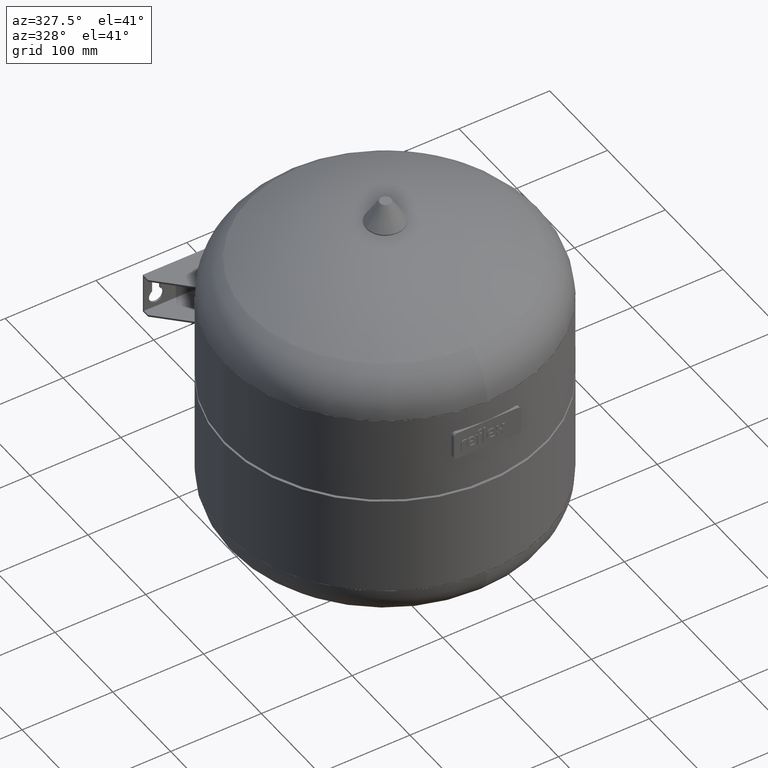
[diagram: clean part render]
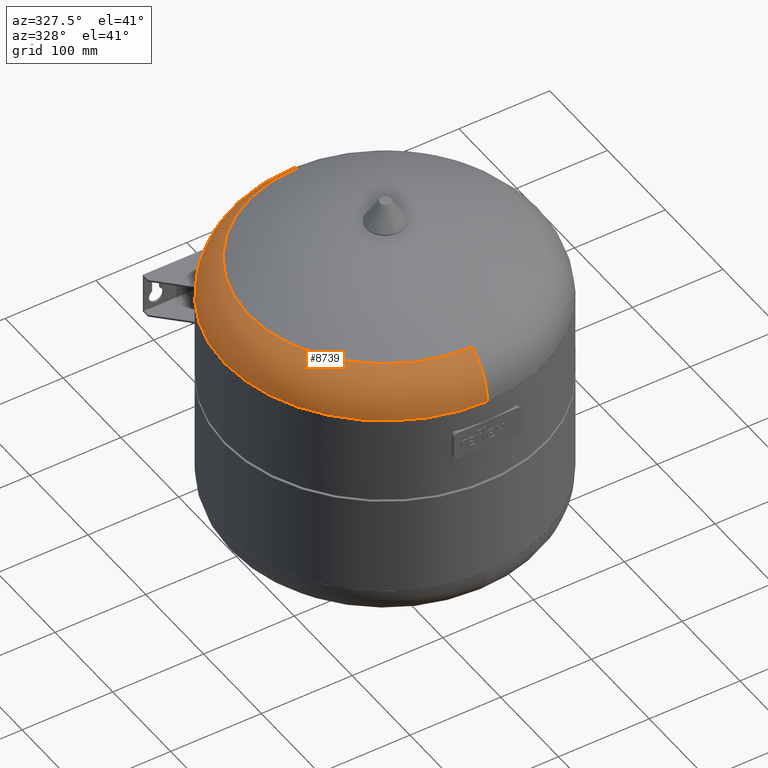
[diagram: same view with one face highlighted and labeled with its STEP entity id]
A machine part, auxiliary view. The second image highlights one B-rep face of the part: STEP entity #8739.
In plain terms, the highlighted toroidal blend (fillet) surface has major radius 121 mm and minor (blend) radius 56 mm.
Its self-contained STEP definition (entity closure, byte-faithful):
#8644=CARTESIAN_POINT('',(-177.0,-7.451053E-017,337.24336987332833));
#8645=VERTEX_POINT('',#8644);
#8669=CARTESIAN_POINT('',(-2.348140E-014,-177.0,337.24336987332828));
#8670=VERTEX_POINT('',#8669);
#8678=CARTESIAN_POINT('',(-4.829614E-018,-7.451053E-017,337.24336987332833));
#8679=DIRECTION('',(0.0,0.0,-1.0));
#8680=DIRECTION('',(-1.0,0.0,0.0));
#8681=AXIS2_PLACEMENT_3D('',#8678,#8679,#8680);
#8682=CIRCLE('',#8681,177.0);
#8683=EDGE_CURVE('',#8670,#8645,#8682,.T.);
#8688=CARTESIAN_POINT('',(-1.805872E-015,-7.451053E-017,337.24336987332833));
#8689=DIRECTION('',(1.984475E-017,3.061617E-016,-1.0));
#8690=DIRECTION('',(0.0,1.0,0.0));
#8691=AXIS2_PLACEMENT_3D('',#8688,#8689,#8690);
#8692=TOROIDAL_SURFACE('',#8691,121.00000000000003,56.000000000000007);
#8693=CARTESIAN_POINT('',(-1.805872E-015,177.0,337.24336987332839));
#8694=VERTEX_POINT('',#8693);
#8695=CARTESIAN_POINT('',(-2.747769E-015,150.71929824561403,384.70665370186521));
#8696=VERTEX_POINT('',#8695);
#8697=CARTESIAN_POINT('',(-1.805872E-015,121.00000000000003,337.24336987332839));
#8698=DIRECTION('',(1.0,0.0,0.0));
#8699=DIRECTION('',(0.0,1.0,0.0));
#8700=AXIS2_PLACEMENT_3D('',#8697,#8698,#8699);
#8701=CIRCLE('',#8700,56.000000000000007);
#8702=EDGE_CURVE('',#8694,#8696,#8701,.T.);
#8703=ORIENTED_EDGE('',*,*,#8702,.F.);
#8704=CARTESIAN_POINT('',(-4.829614E-018,-7.451053E-017,337.24336987332833));
#8705=DIRECTION('',(0.0,0.0,-1.0));
#8706=DIRECTION('',(-1.0,0.0,0.0));
#8707=AXIS2_PLACEMENT_3D('',#8704,#8705,#8706);
#8708=CIRCLE('',#8707,177.0);
#8709=EDGE_CURVE('',#8645,#8694,#8708,.T.);
#8710=ORIENTED_EDGE('',*,*,#8709,.F.);
#8711=ORIENTED_EDGE('',*,*,#8683,.F.);
#8712=CARTESIAN_POINT('',(-2.120495E-014,-150.71929824561408,384.70665370186509));
#8713=VERTEX_POINT('',#8712);
#8714=CARTESIAN_POINT('',(-1.662361E-014,-121.00000000000003,337.24336987332828));
#8715=DIRECTION('',(-1.0,0.0,0.0));
#8716=DIRECTION('',(0.0,-1.0,0.0));
#8717=AXIS2_PLACEMENT_3D('',#8714,#8715,#8716);
#8718=CIRCLE('',#8717,56.000000000000007);
#8719=EDGE_CURVE('',#8670,#8713,#8718,.T.);
#8720=ORIENTED_EDGE('',*,*,#8719,.T.);
#8721=CARTESIAN_POINT('',(-150.71929824561406,-1.460595E-014,384.70665370186515));
#8722=VERTEX_POINT('',#8721);
#8723=CARTESIAN_POINT('',(-9.467265E-016,-1.460595E-014,384.70665370186515));
#8724=DIRECTION('',(0.0,0.0,-1.0));
#8725=DIRECTION('',(-1.0,0.0,0.0));
#8726=AXIS2_PLACEMENT_3D('',#8723,#8724,#8725);
#8727=CIRCLE('',#8726,150.71929824561406);
#8728=EDGE_CURVE('',#8713,#8722,#8727,.T.);
#8729=ORIENTED_EDGE('',*,*,#8728,.T.);
#8730=CARTESIAN_POINT('',(-9.467265E-016,-1.460595E-014,384.70665370186515));
#8731=DIRECTION('',(0.0,0.0,-1.0));
#8732=DIRECTION('',(-1.0,0.0,0.0));
#8733=AXIS2_PLACEMENT_3D('',#8730,#8731,#8732);
#8734=CIRCLE('',#8733,150.71929824561406);
#8735=EDGE_CURVE('',#8722,#8696,#8734,.T.);
#8736=ORIENTED_EDGE('',*,*,#8735,.T.);
#8737=EDGE_LOOP('',(#8703,#8710,#8711,#8720,#8729,#8736));
#8738=FACE_OUTER_BOUND('',#8737,.T.);
#8739=ADVANCED_FACE('',(#8738),#8692,.T.);